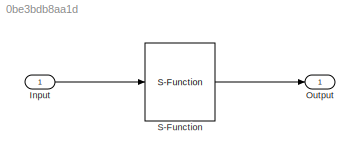
MODEL slx_0be3bdb8aa1d
KIND model
CONFIG AbsTol = auto
CONFIG EnableMultiTasking = off
CONFIG FixedStep = DT
CONFIG MaxStep = auto
CONFIG MinStep = auto
CONFIG RelTol = 1e-3
CONFIG SampleTimeConstraint = Unconstrained
CONFIG SolverName = ode4
CONFIG StartTime = 0
CONFIG StopTime = 0
BLOCK [Inport] Input
BLOCK [Outport] Output
BLOCK [S-Function] S-Function
  EnableBusSupport = off
  FunctionName = FAST_SFunc
  Parameters = FASTinputFile, 0, 0
  Ports = [1, 1]
  SFcnIsStateOwnerBlock = off
  SFunctionDeploymentMode = off
LINE Input:1 -> S-Function:1
LINE S-Function:1 -> Output:1
